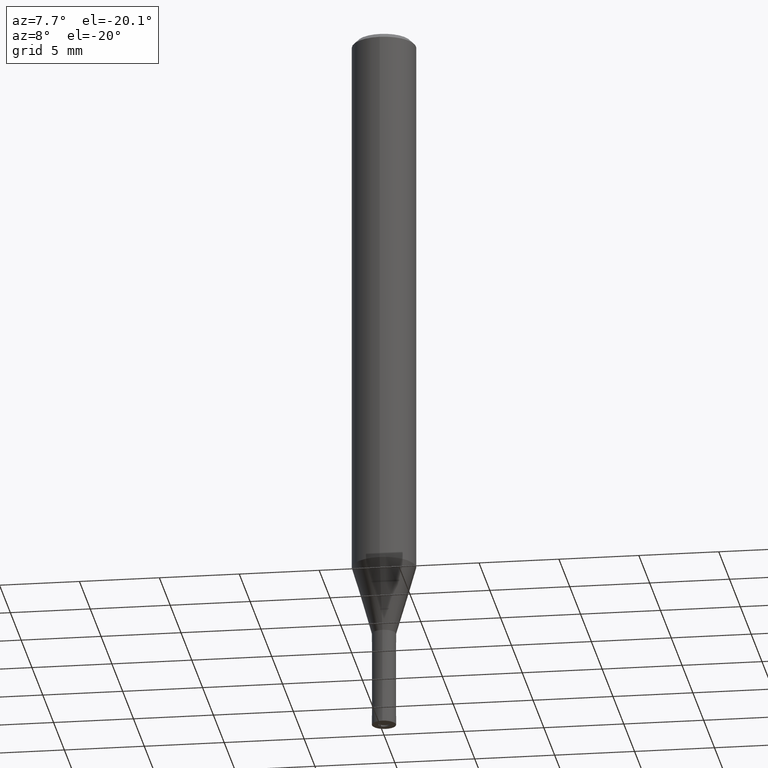
[diagram: clean part render]
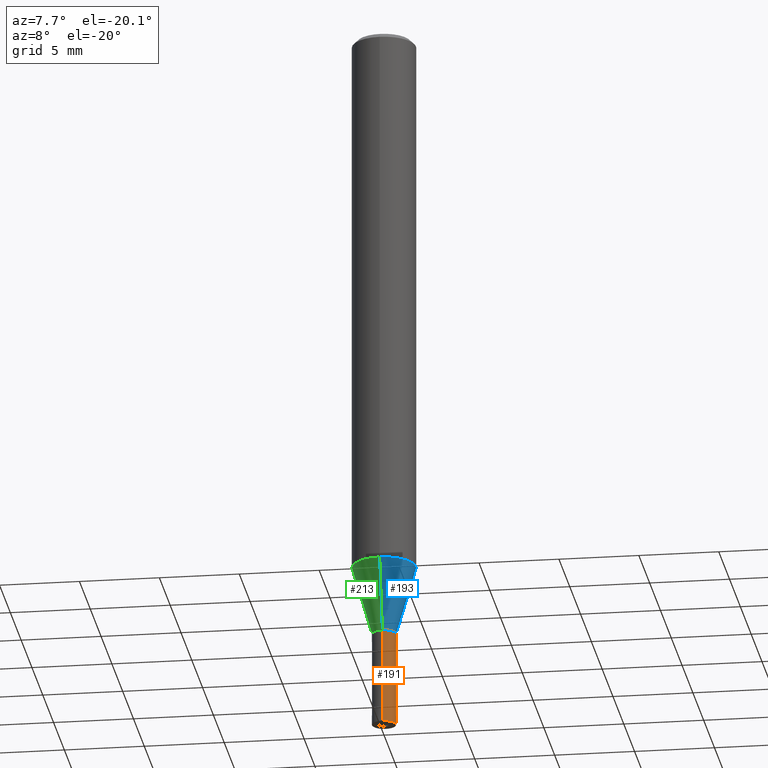
[diagram: same view with three faces highlighted in distinct colors, each labeled with its STEP entity id]
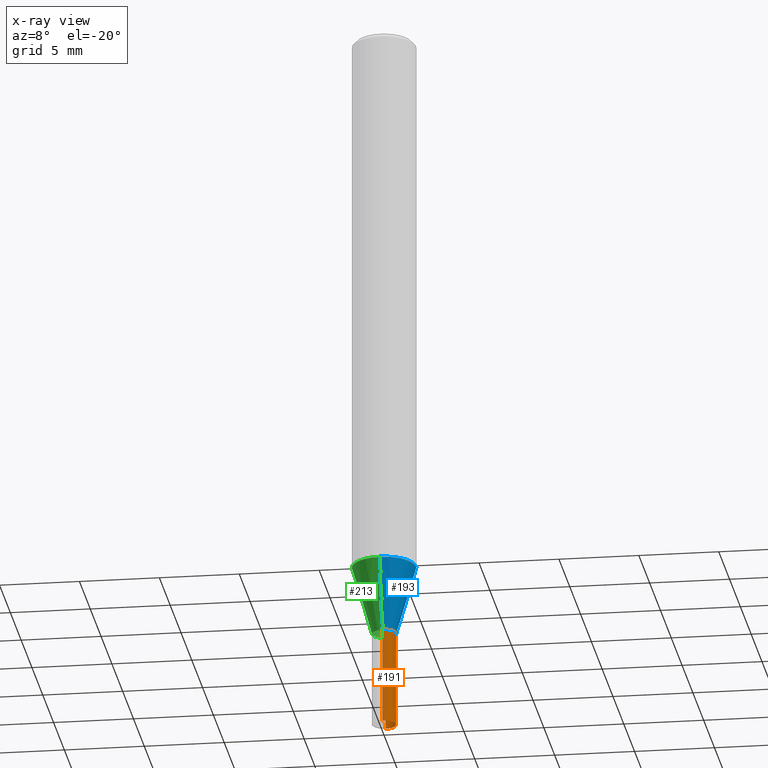
[diagram: x-ray of the same camera — body ghosted, the three highlighted faces saturated]
A machine part, auxiliary view with three faces highlighted in distinct colors.
The next image is the same camera in x-ray (body ghosted, the three faces saturated) — at least one of them is partly hidden behind the body in this view.
Their STEP definitions:

[orange] entity #191 — the highlighted conical surface has half-angle 0.001 deg.
#115=VERTEX_POINT('',#287);
#119=VERTEX_POINT('',#291);
#139=EDGE_CURVE('',#115,#259,#313,.T.);
#167=EDGE_CURVE('',#259,#119,#344,.T.);
#191=ADVANCED_FACE('',(#374),#375,.T.);
#219=EDGE_CURVE('',#119,#235,#406,.T.);
#229=EDGE_CURVE('',#115,#235,#417,.T.);
#235=VERTEX_POINT('',#424);
#259=VERTEX_POINT('',#452);
#287=CARTESIAN_POINT('',(0.0,0.7499,-39.0));
#291=CARTESIAN_POINT('',(9.18454765366783E-017,-0.75,-45.0));
#313=LINE('',#510,#511);
#344=CIRCLE('',#551,0.75);
#374=FACE_OUTER_BOUND('',#583,.T.);
#375=CONICAL_SURFACE('',#584,0.74995,1.66666666651216E-005);
#406=LINE('',#628,#629);
#417=CIRCLE('',#643,0.7499);
#424=CARTESIAN_POINT('',(9.18332304731401E-017,-0.7499,-39.0));
#452=CARTESIAN_POINT('',(0.0,0.75,-45.0));
#510=CARTESIAN_POINT('',(-9.18393535049092E-017,0.74995,-42.0));
#511=VECTOR('',#722,1.0);
#551=AXIS2_PLACEMENT_3D('',#766,#767,#768);
#583=EDGE_LOOP('',(#813,#814,#815,#816));
#584=AXIS2_PLACEMENT_3D('',#817,#818,#819);
#628=CARTESIAN_POINT('',(9.18393535049092E-017,-0.74995,-42.0));
#629=VECTOR('',#855,1.0);
#643=AXIS2_PLACEMENT_3D('',#870,#871,#872);
#722=DIRECTION('',(-2.04101058942026E-021,1.666666666435E-005,-0.999999999861111));
#766=CARTESIAN_POINT('',(0.0,0.0,-45.0));
#767=DIRECTION('',(0.0,0.0,-1.0));
#768=DIRECTION('',(0.0,1.0,0.0));
#813=ORIENTED_EDGE('',*,*,#139,.F.);
#814=ORIENTED_EDGE('',*,*,#229,.T.);
#815=ORIENTED_EDGE('',*,*,#219,.F.);
#816=ORIENTED_EDGE('',*,*,#167,.F.);
#817=CARTESIAN_POINT('',(0.0,0.0,-42.0));
#818=DIRECTION('',(0.0,-0.0,-1.0));
#819=DIRECTION('',(0.0,1.0,0.0));
#855=DIRECTION('',(-2.04101058942026E-021,1.666666666435E-005,0.999999999861111));
#870=CARTESIAN_POINT('',(0.0,0.0,-39.0));
#871=DIRECTION('',(0.0,0.0,-1.0));
#872=DIRECTION('',(0.0,1.0,0.0));

[blue] entity #193 — the highlighted conical surface has half-angle 16.001 deg.
#109=EDGE_CURVE('',#157,#169,#280,.T.);
#113=EDGE_CURVE('',#203,#157,#285,.T.);
#157=VERTEX_POINT('',#333);
#169=VERTEX_POINT('',#346);
#177=EDGE_CURVE('',#247,#169,#357,.T.);
#193=ADVANCED_FACE('',(#377),#378,.T.);
#195=EDGE_CURVE('',#247,#203,#380,.T.);
#203=VERTEX_POINT('',#389);
#247=VERTEX_POINT('',#440);
#280=LINE('',#466,#467);
#285=CIRCLE('',#473,0.74995);
#333=CARTESIAN_POINT('',(9.18393535049092E-017,-0.74995,-39.0));
#346=CARTESIAN_POINT('',(2.44915147732706E-016,-1.99995,-34.641));
#357=CIRCLE('',#565,1.99995);
#377=FACE_OUTER_BOUND('',#586,.T.);
#378=CONICAL_SURFACE('',#587,1.37495,0.279268973819818);
#380=LINE('',#590,#591);
#389=CARTESIAN_POINT('',(0.0,0.74995,-39.0));
#440=CARTESIAN_POINT('',(0.0,1.99995,-34.641));
#466=CARTESIAN_POINT('',(1.68377250618808E-016,-1.37495,-36.8205));
#467=VECTOR('',#683,1.0);
#473=AXIS2_PLACEMENT_3D('',#692,#693,#694);
#565=AXIS2_PLACEMENT_3D('',#785,#786,#787);
#586=EDGE_LOOP('',(#821,#822,#823,#824));
#587=AXIS2_PLACEMENT_3D('',#825,#826,#827);
#590=CARTESIAN_POINT('',(-1.68377250618808E-016,1.37495,-36.8205));
#591=VECTOR('',#828,1.0);
#683=DIRECTION('',(3.375664374138E-017,-0.27565301809855,0.961257204713265));
#692=CARTESIAN_POINT('',(0.0,0.0,-39.0));
#693=DIRECTION('',(0.0,0.0,-1.0));
#694=DIRECTION('',(0.0,1.0,0.0));
#785=CARTESIAN_POINT('',(0.0,0.0,-34.641));
#786=DIRECTION('',(0.0,0.0,-1.0));
#787=DIRECTION('',(0.0,1.0,0.0));
#821=ORIENTED_EDGE('',*,*,#195,.F.);
#822=ORIENTED_EDGE('',*,*,#177,.T.);
#823=ORIENTED_EDGE('',*,*,#109,.F.);
#824=ORIENTED_EDGE('',*,*,#113,.F.);
#825=CARTESIAN_POINT('',(0.0,0.0,-36.8205));
#826=DIRECTION('',(-0.0,-0.0,1.0));
#827=DIRECTION('',(0.0,1.0,0.0));
#828=DIRECTION('',(3.375664374138E-017,-0.27565301809855,-0.961257204713265));

[green] entity #213 — the highlighted conical surface has half-angle 16.001 deg.
#109=EDGE_CURVE('',#157,#169,#280,.T.);
#157=VERTEX_POINT('',#333);
#169=VERTEX_POINT('',#346);
#195=EDGE_CURVE('',#247,#203,#380,.T.);
#203=VERTEX_POINT('',#389);
#211=EDGE_CURVE('',#157,#203,#397,.T.);
#213=ADVANCED_FACE('',(#399),#400,.T.);
#227=EDGE_CURVE('',#169,#247,#415,.T.);
#247=VERTEX_POINT('',#440);
#280=LINE('',#466,#467);
#333=CARTESIAN_POINT('',(9.18393535049092E-017,-0.74995,-39.0));
#346=CARTESIAN_POINT('',(2.44915147732706E-016,-1.99995,-34.641));
#380=LINE('',#590,#591);
#389=CARTESIAN_POINT('',(0.0,0.74995,-39.0));
#397=CIRCLE('',#614,0.74995);
#399=FACE_OUTER_BOUND('',#616,.T.);
#400=CONICAL_SURFACE('',#617,1.37495,0.279268973819818);
#415=CIRCLE('',#640,1.99995);
#440=CARTESIAN_POINT('',(0.0,1.99995,-34.641));
#466=CARTESIAN_POINT('',(1.68377250618808E-016,-1.37495,-36.8205));
#467=VECTOR('',#683,1.0);
#590=CARTESIAN_POINT('',(-1.68377250618808E-016,1.37495,-36.8205));
#591=VECTOR('',#828,1.0);
#614=AXIS2_PLACEMENT_3D('',#842,#843,#844);
#616=EDGE_LOOP('',(#846,#847,#848,#849));
#617=AXIS2_PLACEMENT_3D('',#850,#851,#852);
#640=AXIS2_PLACEMENT_3D('',#867,#868,#869);
#683=DIRECTION('',(3.375664374138E-017,-0.27565301809855,0.961257204713265));
#828=DIRECTION('',(3.375664374138E-017,-0.27565301809855,-0.961257204713265));
#842=CARTESIAN_POINT('',(0.0,0.0,-39.0));
#843=DIRECTION('',(0.0,0.0,-1.0));
#844=DIRECTION('',(0.0,1.0,0.0));
#846=ORIENTED_EDGE('',*,*,#195,.T.);
#847=ORIENTED_EDGE('',*,*,#211,.F.);
#848=ORIENTED_EDGE('',*,*,#109,.T.);
#849=ORIENTED_EDGE('',*,*,#227,.T.);
#850=CARTESIAN_POINT('',(0.0,0.0,-36.8205));
#851=DIRECTION('',(-0.0,-0.0,1.0));
#852=DIRECTION('',(0.0,1.0,0.0));
#867=CARTESIAN_POINT('',(0.0,0.0,-34.641));
#868=DIRECTION('',(0.0,0.0,-1.0));
#869=DIRECTION('',(0.0,1.0,0.0));